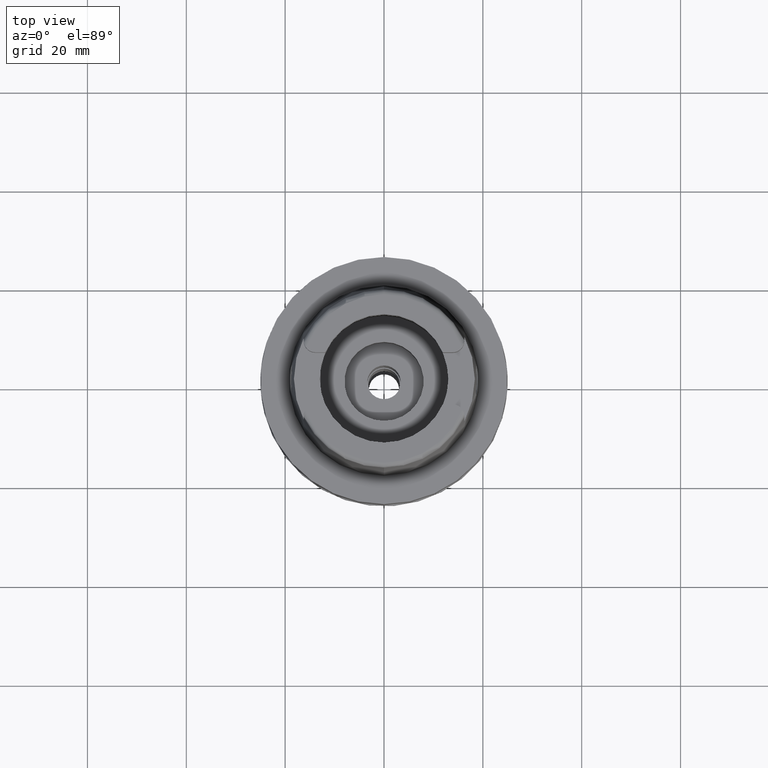
[diagram: clean part render]
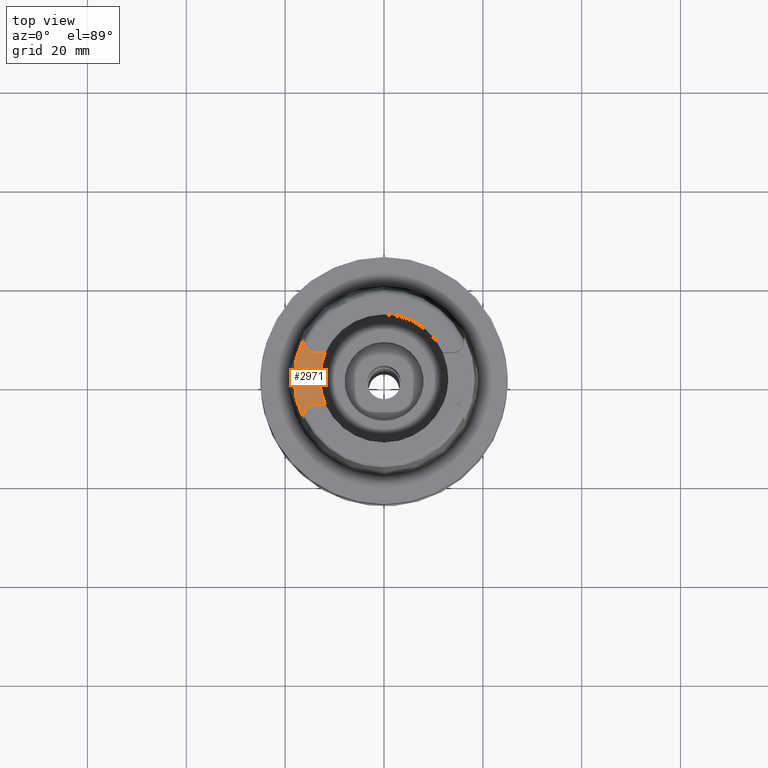
[diagram: same view with one face highlighted and labeled with its STEP entity id]
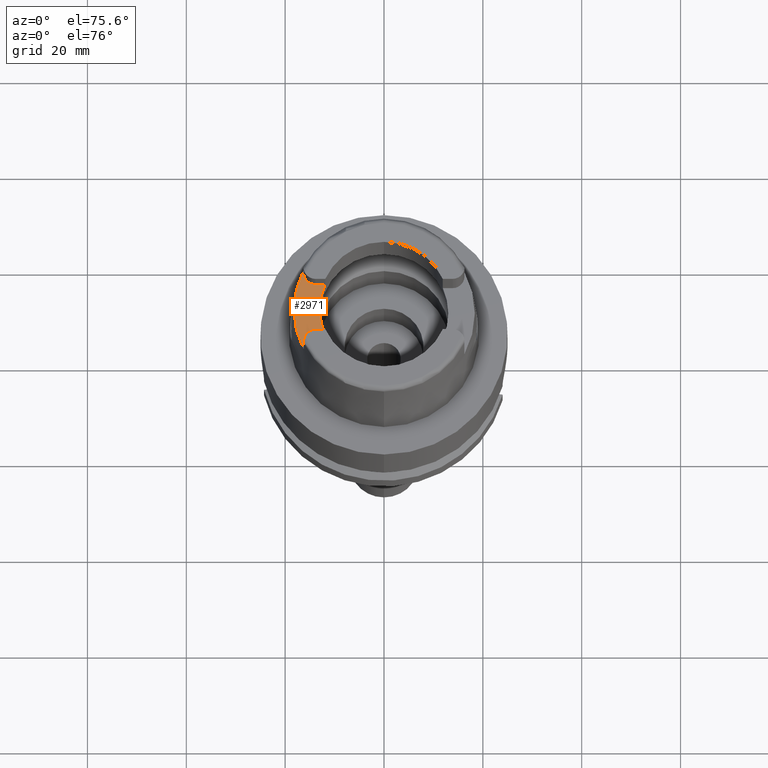
[diagram: same view with one face highlighted and labeled with its STEP entity id]
A machine part, top view. The second image highlights one B-rep face of the part: STEP entity #2971.
A second angle (auxiliary view) of the same face is appended — the face is thin or edge-on in the first view.
In plain terms, the highlighted planar face has unit normal (0, 0, 1).
Its self-contained STEP definition (entity closure, byte-faithful):
#9 = EDGE_CURVE ( 'NONE', #2284, #4791, #3151, .T. ) ;
#19 = VECTOR ( 'NONE', #88, 1000.000000000000114 ) ;
#88 = DIRECTION ( 'NONE',  ( 2.724861989728963355E-06, -0.9999999999962875252, -3.053072012144957926E-14 ) ) ;
#363 = DIRECTION ( 'NONE',  ( 6.403803029344968857E-07, -0.9999999999997949418, 3.053026158947983985E-14 ) ) ;
#415 = DIRECTION ( 'NONE',  ( 0.0000000000000000000, 0.0000000000000000000, 1.000000000000000000 ) ) ;
#434 = DIRECTION ( 'NONE',  ( -0.9141462211317679110, 0.4053846153845859779, 0.0000000000000000000 ) ) ;
#456 = EDGE_LOOP ( 'NONE', ( #3958, #4665, #5004, #4594, #4614, #4814, #4017, #4570 ) ) ;
#493 = DIRECTION ( 'NONE',  ( -1.000000000000000000, 0.0000000000000000000, 0.0000000000000000000 ) ) ;
#518 = CARTESIAN_POINT ( 'NONE',  ( -16.26000158539999774, 8.231826053340999039, 20.50000000000000000 ) ) ;
#553 = AXIS2_PLACEMENT_3D ( 'NONE', #1469, #1418, #2255 ) ;
#643 = EDGE_CURVE ( 'NONE', #3950, #1185, #5266, .T. ) ;
#740 = CARTESIAN_POINT ( 'NONE',  ( 0.0000000000000000000, 0.0000000000000000000, 20.50000000000000000 ) ) ;
#949 = DIRECTION ( 'NONE',  ( 1.000000000000000000, 0.0000000000000000000, 0.0000000000000000000 ) ) ;
#1012 = CIRCLE ( 'NONE', #2993, 13.00000000000000000 ) ;
#1067 = CARTESIAN_POINT ( 'NONE',  ( -11.88390087470999923, -5.270000000000000462, 20.50000000000000000 ) ) ;
#1180 = CARTESIAN_POINT ( 'NONE',  ( -16.26000000000000156, 7.649999999999999467, 20.50000000000000000 ) ) ;
#1185 = VERTEX_POINT ( 'NONE', #3722 ) ;
#1227 = EDGE_CURVE ( 'NONE', #4431, #3950, #1504, .T. ) ;
#1418 = DIRECTION ( 'NONE',  ( 0.0000000000000000000, 0.0000000000000000000, 1.000000000000000000 ) ) ;
#1469 = CARTESIAN_POINT ( 'NONE',  ( -13.88000000000000078, -7.649999999999999467, 20.50000000000000000 ) ) ;
#1504 = CIRCLE ( 'NONE', #2905, 2.380000000000000338 ) ;
#1508 = DIRECTION ( 'NONE',  ( -0.8921810005753487705, -0.4516780515061248891, 0.0000000000000000000 ) ) ;
#1565 = EDGE_CURVE ( 'NONE', #1185, #2284, #1012, .T. ) ;
#1567 = VERTEX_POINT ( 'NONE', #4973 ) ;
#1782 = VERTEX_POINT ( 'NONE', #3591 ) ;
#1981 = CARTESIAN_POINT ( 'NONE',  ( -11.88390087470999923, -5.270000000000000462, 20.50000000000000000 ) ) ;
#2014 = VECTOR ( 'NONE', #3635, 1000.000000000000000 ) ;
#2040 = CARTESIAN_POINT ( 'NONE',  ( -16.26000000000000156, -7.649999999999999467, 20.50000000000000000 ) ) ;
#2255 = DIRECTION ( 'NONE',  ( 0.0000000000000000000, 1.000000000000000000, 0.0000000000000000000 ) ) ;
#2284 = VERTEX_POINT ( 'NONE', #1067 ) ;
#2285 = EDGE_CURVE ( 'NONE', #3781, #1782, #5099, .T. ) ;
#2563 = PLANE ( 'NONE',  #2565 ) ;
#2565 = AXIS2_PLACEMENT_3D ( 'NONE', #5130, #3426, #949 ) ;
#2899 = CIRCLE ( 'NONE', #553, 2.380000000000000338 ) ;
#2905 = AXIS2_PLACEMENT_3D ( 'NONE', #3327, #415, #493 ) ;
#2971 = ADVANCED_FACE ( 'NONE', ( #4717 ), #2563, .T. ) ;
#2993 = AXIS2_PLACEMENT_3D ( 'NONE', #3742, #5222, #434 ) ;
#3151 = LINE ( 'NONE', #1981, #2014 ) ;
#3296 = LINE ( 'NONE', #2040, #3769 ) ;
#3327 = CARTESIAN_POINT ( 'NONE',  ( -13.88000000000000078, 7.649999999999999467, 20.50000000000000000 ) ) ;
#3426 = DIRECTION ( 'NONE',  ( 0.0000000000000000000, 0.0000000000000000000, 1.000000000000000000 ) ) ;
#3543 = VECTOR ( 'NONE', #4477, 1000.000000000000000 ) ;
#3591 = CARTESIAN_POINT ( 'NONE',  ( -16.26000000000000156, 8.231833128876001382, 20.50000000000000000 ) ) ;
#3601 = DIRECTION ( 'NONE',  ( 0.0000000000000000000, 0.0000000000000000000, -1.000000000000000000 ) ) ;
#3635 = DIRECTION ( 'NONE',  ( -1.000000000000000000, 1.744231717310999986E-13, 0.0000000000000000000 ) ) ;
#3681 = CARTESIAN_POINT ( 'NONE',  ( -16.25999962739999916, -8.231834791749999880, 20.50000000000000000 ) ) ;
#3722 = CARTESIAN_POINT ( 'NONE',  ( -11.88390087470999923, 5.270000000000000462, 20.50000000000000000 ) ) ;
#3735 = CARTESIAN_POINT ( 'NONE',  ( -13.88000000000000078, 5.270000000000000462, 20.50000000000000000 ) ) ;
#3742 = CARTESIAN_POINT ( 'NONE',  ( 0.0000000000000000000, 0.0000000000000000000, 20.50000000000000000 ) ) ;
#3769 = VECTOR ( 'NONE', #363, 1000.000000000000114 ) ;
#3781 = VERTEX_POINT ( 'NONE', #3681 ) ;
#3800 = LINE ( 'NONE', #518, #19 ) ;
#3950 = VERTEX_POINT ( 'NONE', #4352 ) ;
#3958 = ORIENTED_EDGE ( 'NONE', *, *, #643, .F. ) ;
#3971 = AXIS2_PLACEMENT_3D ( 'NONE', #740, #3601, #1508 ) ;
#3972 = EDGE_CURVE ( 'NONE', #4791, #1567, #2899, .T. ) ;
#4017 = ORIENTED_EDGE ( 'NONE', *, *, #9, .F. ) ;
#4341 = CARTESIAN_POINT ( 'NONE',  ( -13.88000000000000078, -5.270000000000000462, 20.50000000000000000 ) ) ;
#4352 = CARTESIAN_POINT ( 'NONE',  ( -13.88000000000000078, 5.270000000000000462, 20.50000000000000000 ) ) ;
#4431 = VERTEX_POINT ( 'NONE', #1180 ) ;
#4470 = EDGE_CURVE ( 'NONE', #1567, #3781, #3296, .T. ) ;
#4477 = DIRECTION ( 'NONE',  ( 1.000000000000000000, 1.744231717310999986E-13, 0.0000000000000000000 ) ) ;
#4570 = ORIENTED_EDGE ( 'NONE', *, *, #1565, .F. ) ;
#4594 = ORIENTED_EDGE ( 'NONE', *, *, #2285, .F. ) ;
#4614 = ORIENTED_EDGE ( 'NONE', *, *, #4470, .F. ) ;
#4665 = ORIENTED_EDGE ( 'NONE', *, *, #1227, .F. ) ;
#4717 = FACE_OUTER_BOUND ( 'NONE', #456, .T. ) ;
#4751 = EDGE_CURVE ( 'NONE', #1782, #4431, #3800, .T. ) ;
#4791 = VERTEX_POINT ( 'NONE', #4341 ) ;
#4814 = ORIENTED_EDGE ( 'NONE', *, *, #3972, .F. ) ;
#4973 = CARTESIAN_POINT ( 'NONE',  ( -16.26000000000000156, -7.649999999999999467, 20.50000000000000000 ) ) ;
#5004 = ORIENTED_EDGE ( 'NONE', *, *, #4751, .F. ) ;
#5099 = CIRCLE ( 'NONE', #3971, 18.22500141733000589 ) ;
#5130 = CARTESIAN_POINT ( 'NONE',  ( 0.0000000000000000000, 0.0000000000000000000, 20.50000000000000000 ) ) ;
#5222 = DIRECTION ( 'NONE',  ( 0.0000000000000000000, 0.0000000000000000000, 1.000000000000000000 ) ) ;
#5266 = LINE ( 'NONE', #3735, #3543 ) ;